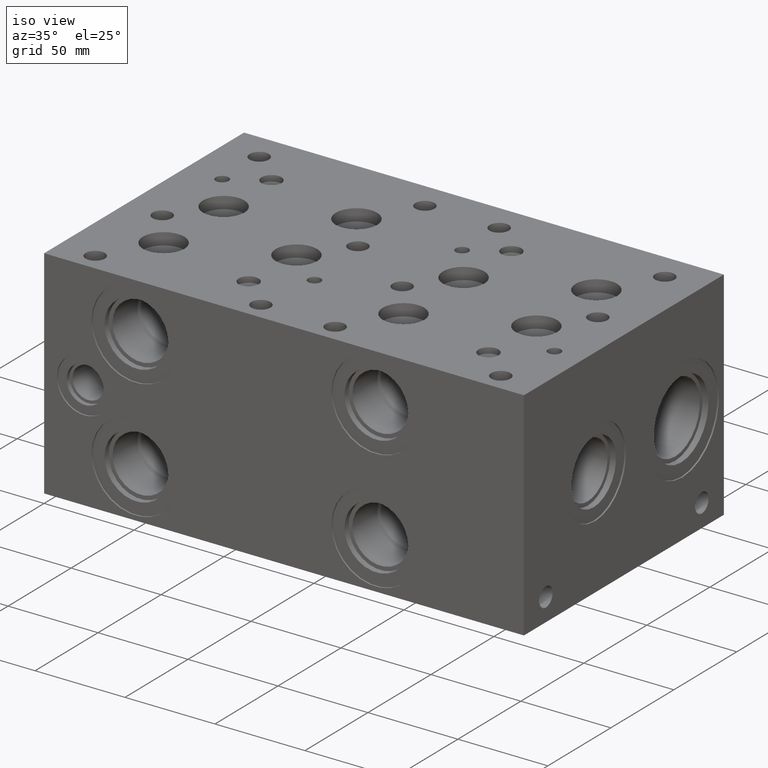
[diagram: clean part render]
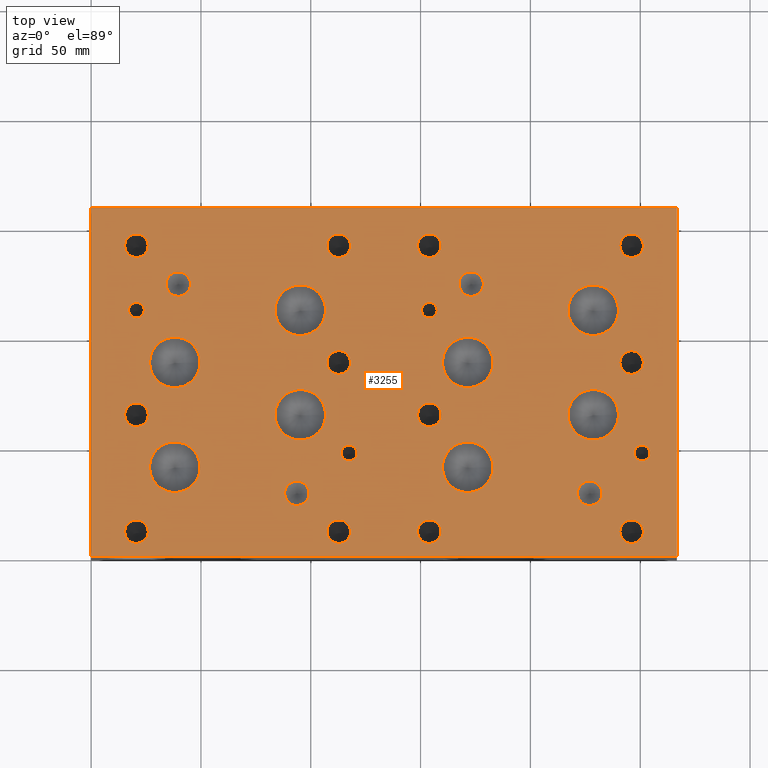
[diagram: tour spotlight — one face highlighted and labeled with its STEP entity id]
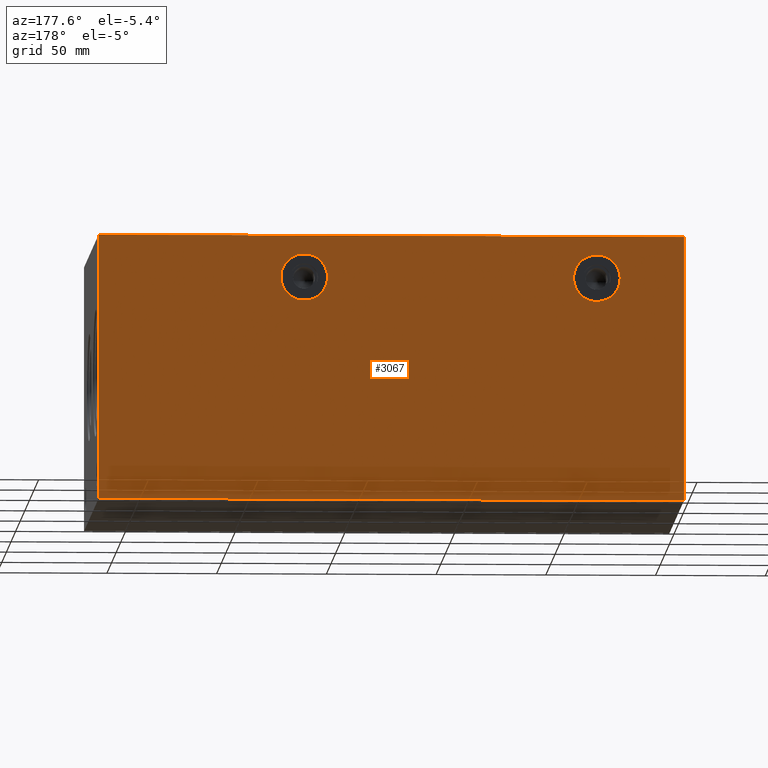
[diagram: tour spotlight — one face highlighted and labeled with its STEP entity id]
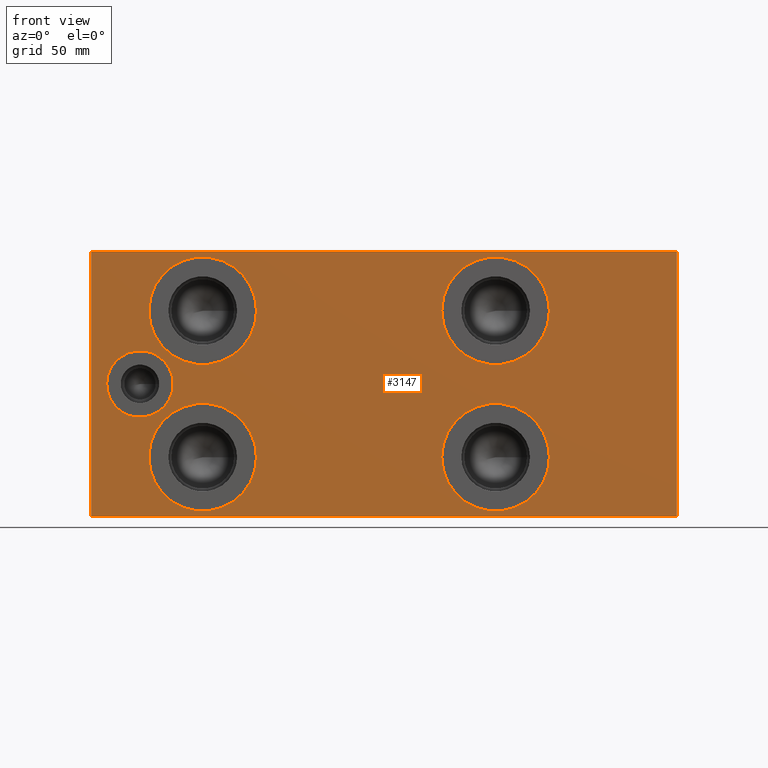
[diagram: tour spotlight — one face highlighted and labeled with its STEP entity id]
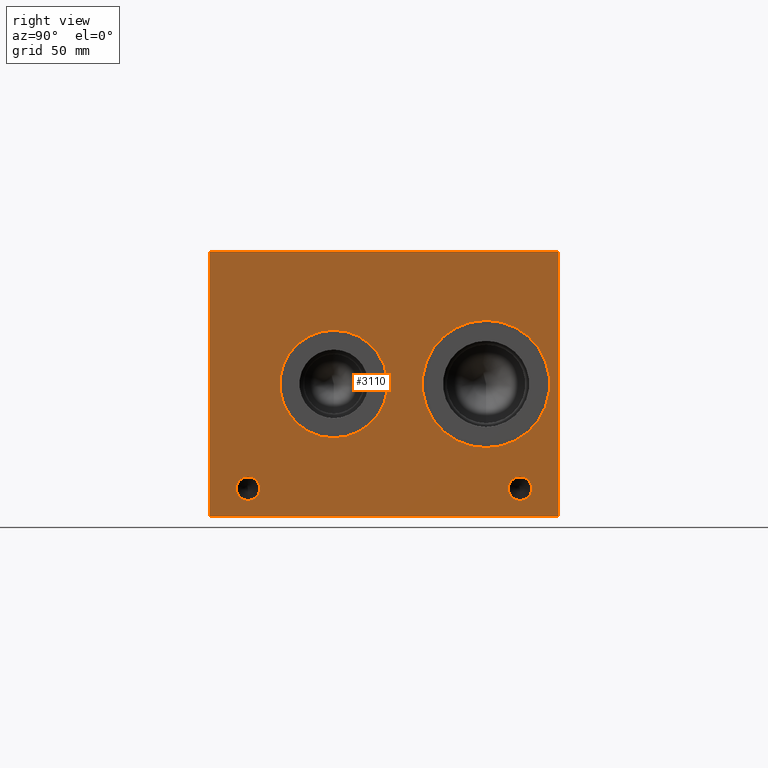
[diagram: tour spotlight — one face highlighted and labeled with its STEP entity id]
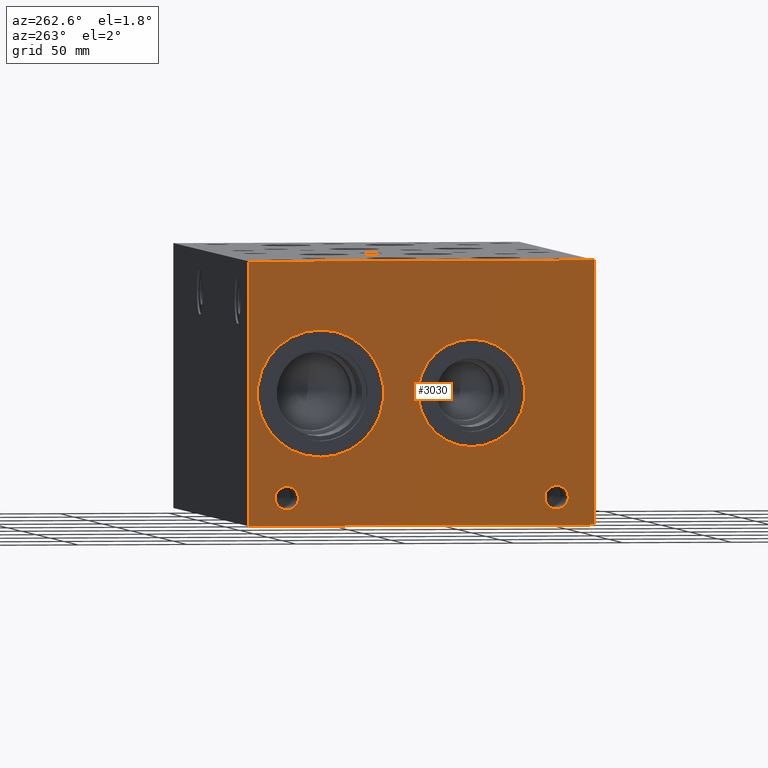
[diagram: tour spotlight — one face highlighted and labeled with its STEP entity id]
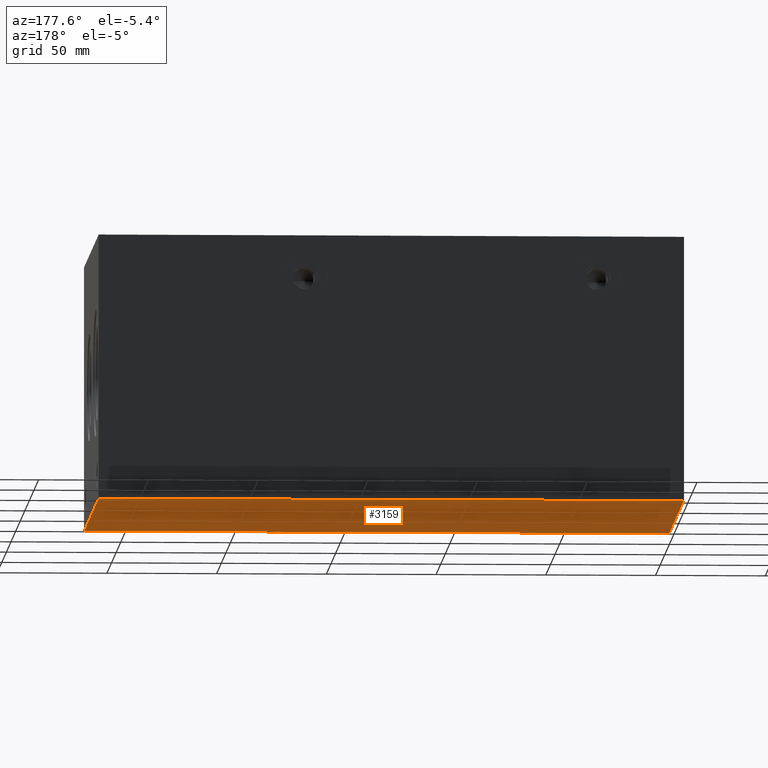
[diagram: tour spotlight — one face highlighted and labeled with its STEP entity id]
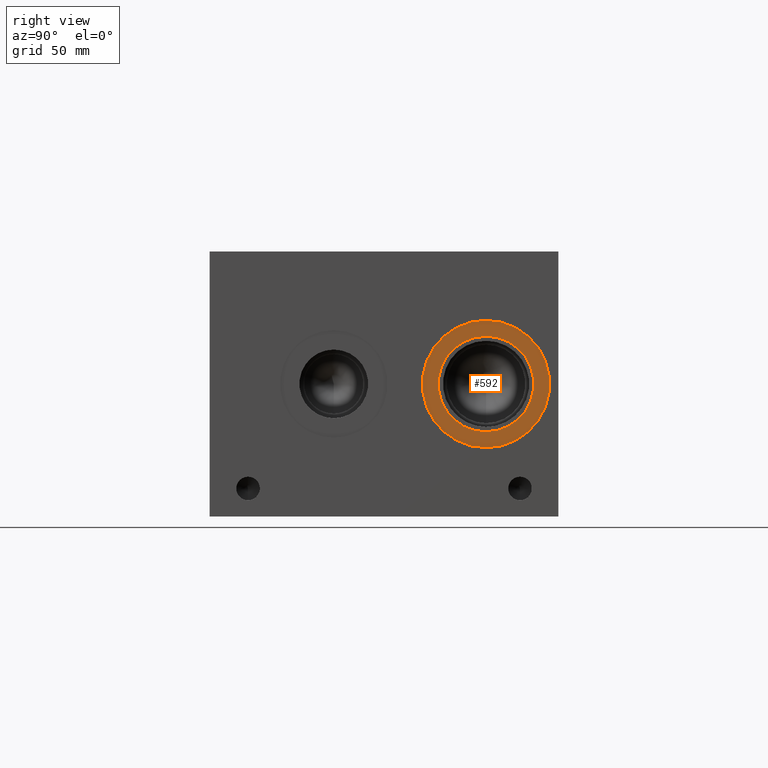
[diagram: tour spotlight — one face highlighted and labeled with its STEP entity id]
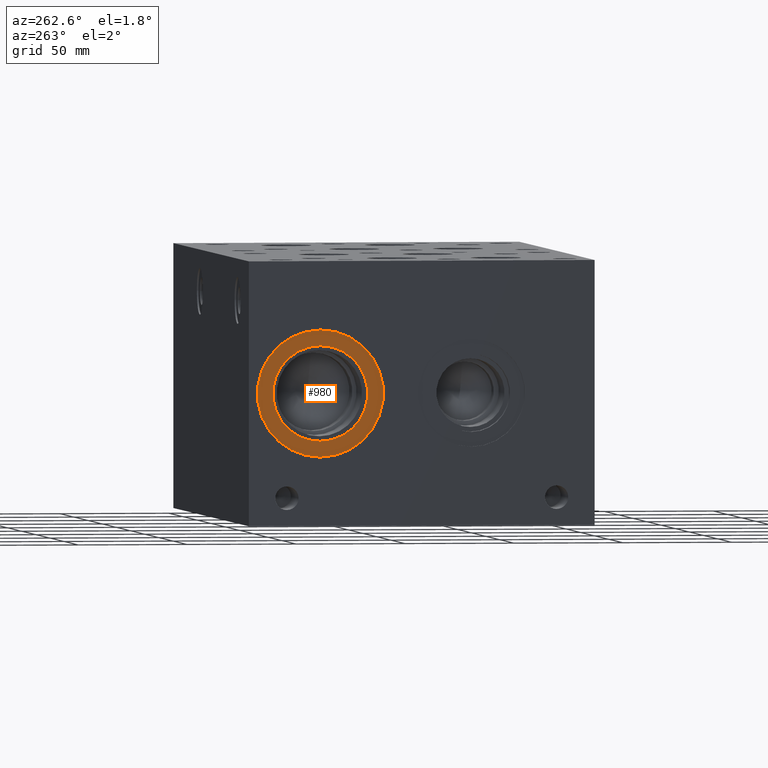
[diagram: tour spotlight — one face highlighted and labeled with its STEP entity id]
A machine part: a face-by-face anatomy tour. The part has 158 B-rep faces; the first image is the clean iso view, then the 8 largest visible faces are spotlighted one at a time (largest first), each with its STEP entity span.

Face 1 — top view, entity #3255. In plain terms, the highlighted planar face has unit normal (0, 0, 1).
Definition (entity closure, byte-faithful):
#404=CARTESIAN_POINT('',(178.58739999999997,123.85040000000001,120.65000000000001));
#405=VERTEX_POINT('',#404);
#406=CARTESIAN_POINT('',(173.0248,123.85040000000001,120.65000000000001));
#407=DIRECTION('',(0.0,0.0,-1.0));
#408=DIRECTION('',(1.0,0.0,0.0));
#409=AXIS2_PLACEMENT_3D('',#406,#407,#408);
#410=CIRCLE('',#409,5.562599999999982);
#411=EDGE_CURVE('',#405,#405,#410,.T.);
#441=CARTESIAN_POINT('',(45.237400000000001,123.85040000000001,120.65000000000001));
#442=VERTEX_POINT('',#441);
#443=CARTESIAN_POINT('',(39.674800000000005,123.85040000000001,120.65000000000001));
#444=DIRECTION('',(0.0,0.0,-1.0));
#445=DIRECTION('',(1.0,0.0,0.0));
#446=AXIS2_PLACEMENT_3D('',#443,#444,#445);
#447=CIRCLE('',#446,5.5626);
#448=EDGE_CURVE('',#442,#442,#447,.T.);
#2039=CARTESIAN_POINT('',(232.57510000000002,28.5623,120.65000000000001));
#2040=VERTEX_POINT('',#2039);
#2041=CARTESIAN_POINT('',(227.01250000000002,28.5623,120.65000000000001));
#2042=DIRECTION('',(0.0,0.0,-1.0));
#2043=DIRECTION('',(1.0,0.0,0.0));
#2044=AXIS2_PLACEMENT_3D('',#2041,#2042,#2043);
#2045=CIRCLE('',#2044,5.562600000000018);
#2046=EDGE_CURVE('',#2040,#2040,#2045,.T.);
#2076=CARTESIAN_POINT('',(182.96890000000002,40.4495,120.65000000000001));
#2077=VERTEX_POINT('',#2076);
#2078=CARTESIAN_POINT('',(171.46270000000001,40.4495,120.65000000000001));
#2079=DIRECTION('',(0.0,0.0,-1.0));
#2080=DIRECTION('',(1.0,0.0,0.0));
#2081=AXIS2_PLACEMENT_3D('',#2078,#2079,#2080);
#2082=CIRCLE('',#2081,11.5062);
#2083=EDGE_CURVE('',#2077,#2077,#2082,.T.);
#2113=CARTESIAN_POINT('',(182.96890000000002,88.12530000000001,120.65000000000001));
#2114=VERTEX_POINT('',#2113);
#2115=CARTESIAN_POINT('',(171.46270000000001,88.12530000000001,120.65000000000001));
#2116=DIRECTION('',(0.0,0.0,-1.0));
#2117=DIRECTION('',(1.0,0.0,0.0));
#2118=AXIS2_PLACEMENT_3D('',#2115,#2116,#2117);
#2119=CIRCLE('',#2118,11.5062);
#2120=EDGE_CURVE('',#2114,#2114,#2119,.T.);
#2150=CARTESIAN_POINT('',(240.1189,111.89970000000001,120.65000000000001));
#2151=VERTEX_POINT('',#2150);
#2152=CARTESIAN_POINT('',(228.61270000000002,111.89970000000001,120.65000000000001));
#2153=DIRECTION('',(0.0,0.0,-1.0));
#2154=DIRECTION('',(1.0,0.0,0.0));
#2155=AXIS2_PLACEMENT_3D('',#2152,#2153,#2154);
#2156=CIRCLE('',#2155,11.5062);
#2157=EDGE_CURVE('',#2151,#2151,#2156,.T.);
#2187=CARTESIAN_POINT('',(240.1189,64.3001,120.65000000000001));
#2188=VERTEX_POINT('',#2187);
#2189=CARTESIAN_POINT('',(228.61270000000002,64.3001,120.65000000000001));
#2190=DIRECTION('',(0.0,0.0,-1.0));
#2191=DIRECTION('',(1.0,0.0,0.0));
#2192=AXIS2_PLACEMENT_3D('',#2189,#2190,#2191);
#2193=CIRCLE('',#2192,11.5062);
#2194=EDGE_CURVE('',#2188,#2188,#2193,.T.);
#2224=CARTESIAN_POINT('',(254.40640000000002,46.850300000000004,120.65000000000001));
#2225=VERTEX_POINT('',#2224);
#2226=CARTESIAN_POINT('',(250.83770000000001,46.850300000000004,120.65000000000001));
#2227=DIRECTION('',(0.0,0.0,-1.0));
#2228=DIRECTION('',(1.0,0.0,0.0));
#2229=AXIS2_PLACEMENT_3D('',#2226,#2227,#2228);
#2230=CIRCLE('',#2229,3.568700000000007);
#2231=EDGE_CURVE('',#2225,#2225,#2230,.T.);
#2261=CARTESIAN_POINT('',(157.55620000000002,111.89970000000001,120.65000000000001));
#2262=VERTEX_POINT('',#2261);
#2263=CARTESIAN_POINT('',(153.98750000000001,111.89970000000001,120.65000000000001));
#2264=DIRECTION('',(0.0,0.0,-1.0));
#2265=DIRECTION('',(1.0,0.0,0.0));
#2266=AXIS2_PLACEMENT_3D('',#2263,#2264,#2265);
#2267=CIRCLE('',#2266,3.568700000000007);
#2268=EDGE_CURVE('',#2262,#2262,#2267,.T.);
#2298=CARTESIAN_POINT('',(159.37230000000002,64.3001,120.65000000000001));
#2299=VERTEX_POINT('',#2298);
#2300=CARTESIAN_POINT('',(154.0129,64.3001,120.65000000000001));
#2301=DIRECTION('',(0.0,0.0,-1.0));
#2302=DIRECTION('',(1.0,0.0,0.0));
#2303=AXIS2_PLACEMENT_3D('',#2300,#2301,#2302);
#2304=CIRCLE('',#2303,5.359400000000001);
#2305=EDGE_CURVE('',#2299,#2299,#2304,.T.);
#2335=CARTESIAN_POINT('',(159.34690000000001,11.112500000000001,120.65000000000001));
#2336=VERTEX_POINT('',#2335);
#2337=CARTESIAN_POINT('',(153.98750000000001,11.112500000000001,120.65000000000001));
#2338=DIRECTION('',(0.0,0.0,-1.0));
#2339=DIRECTION('',(1.0,0.0,0.0));
#2340=AXIS2_PLACEMENT_3D('',#2337,#2338,#2339);
#2341=CIRCLE('',#2340,5.359400000000001);
#2342=EDGE_CURVE('',#2336,#2336,#2341,.T.);
#2372=CARTESIAN_POINT('',(251.42190000000002,11.112500000000001,120.65000000000001));
#2373=VERTEX_POINT('',#2372);
#2374=CARTESIAN_POINT('',(246.06250000000003,11.112500000000001,120.65000000000001));
#2375=DIRECTION('',(0.0,0.0,-1.0));
#2376=DIRECTION('',(1.0,0.0,0.0));
#2377=AXIS2_PLACEMENT_3D('',#2374,#2375,#2376);
#2378=CIRCLE('',#2377,5.359400000000001);
#2379=EDGE_CURVE('',#2373,#2373,#2378,.T.);
#2409=CARTESIAN_POINT('',(251.42190000000002,88.099900000000005,120.65000000000001));
#2410=VERTEX_POINT('',#2409);
#2411=CARTESIAN_POINT('',(246.06250000000003,88.099900000000005,120.65000000000001));
#2412=DIRECTION('',(0.0,0.0,-1.0));
#2413=DIRECTION('',(1.0,0.0,0.0));
#2414=AXIS2_PLACEMENT_3D('',#2411,#2412,#2413);
#2415=CIRCLE('',#2414,5.359400000000001);
#2416=EDGE_CURVE('',#2410,#2410,#2415,.T.);
#2446=CARTESIAN_POINT('',(251.42190000000002,141.28749999999999,120.65000000000001));
#2447=VERTEX_POINT('',#2446);
#2448=CARTESIAN_POINT('',(246.06250000000003,141.28749999999999,120.65000000000001));
#2449=DIRECTION('',(0.0,0.0,-1.0));
#2450=DIRECTION('',(1.0,0.0,0.0));
#2451=AXIS2_PLACEMENT_3D('',#2448,#2449,#2450);
#2452=CIRCLE('',#2451,5.359400000000001);
#2453=EDGE_CURVE('',#2447,#2447,#2452,.T.);
#2483=CARTESIAN_POINT('',(159.34690000000001,141.28749999999999,120.65000000000001));
#2484=VERTEX_POINT('',#2483);
#2485=CARTESIAN_POINT('',(153.98750000000001,141.28749999999999,120.65000000000001));
#2486=DIRECTION('',(0.0,0.0,-1.0));
#2487=DIRECTION('',(1.0,0.0,0.0));
#2488=AXIS2_PLACEMENT_3D('',#2485,#2486,#2487);
#2489=CIRCLE('',#2488,5.359400000000001);
#2490=EDGE_CURVE('',#2484,#2484,#2489,.T.);
#2520=CARTESIAN_POINT('',(99.231450000000024,28.582619999999999,120.65000000000001));
#2521=VERTEX_POINT('',#2520);
#2522=CARTESIAN_POINT('',(93.675200000000004,28.582619999999999,120.65000000000001));
#2523=DIRECTION('',(0.0,0.0,-1.0));
#2524=DIRECTION('',(1.0,0.0,0.0));
#2525=AXIS2_PLACEMENT_3D('',#2522,#2523,#2524);
#2526=CIRCLE('',#2525,5.556250000000009);
#2527=EDGE_CURVE('',#2521,#2521,#2526,.T.);
#2557=CARTESIAN_POINT('',(49.618900000000004,40.474899999999998,120.65000000000001));
#2558=VERTEX_POINT('',#2557);
#2559=CARTESIAN_POINT('',(38.112699999999997,40.474899999999998,120.65000000000001));
#2560=DIRECTION('',(0.0,0.0,-1.0));
#2561=DIRECTION('',(1.0,0.0,0.0));
#2562=AXIS2_PLACEMENT_3D('',#2559,#2560,#2561);
#2563=CIRCLE('',#2562,11.506200000000003);
#2564=EDGE_CURVE('',#2558,#2558,#2563,.T.);
#2594=CARTESIAN_POINT('',(49.618900000000004,88.12530000000001,120.65000000000001));
#2595=VERTEX_POINT('',#2594);
#2596=CARTESIAN_POINT('',(38.112699999999997,88.12530000000001,120.65000000000001));
#2597=DIRECTION('',(0.0,0.0,-1.0));
#2598=DIRECTION('',(1.0,0.0,0.0));
#2599=AXIS2_PLACEMENT_3D('',#2596,#2597,#2598);
#2600=CIRCLE('',#2599,11.506200000000003);
#2601=EDGE_CURVE('',#2595,#2595,#2600,.T.);
#2631=CARTESIAN_POINT('',(106.77144,111.9251,120.65000000000001));
#2632=VERTEX_POINT('',#2631);
#2633=CARTESIAN_POINT('',(95.262699999999995,111.9251,120.65000000000001));
#2634=DIRECTION('',(0.0,0.0,-1.0));
#2635=DIRECTION('',(1.0,0.0,0.0));
#2636=AXIS2_PLACEMENT_3D('',#2633,#2634,#2635);
#2637=CIRCLE('',#2636,11.50874);
#2638=EDGE_CURVE('',#2632,#2632,#2637,.T.);
#2668=CARTESIAN_POINT('',(106.77144,64.3001,120.65000000000001));
#2669=VERTEX_POINT('',#2668);
#2670=CARTESIAN_POINT('',(95.262699999999995,64.3001,120.65000000000001));
#2671=DIRECTION('',(0.0,0.0,-1.0));
#2672=DIRECTION('',(1.0,0.0,0.0));
#2673=AXIS2_PLACEMENT_3D('',#2670,#2671,#2672);
#2674=CIRCLE('',#2673,11.50874);
#2675=EDGE_CURVE('',#2669,#2669,#2674,.T.);
#2705=CARTESIAN_POINT('',(121.05640000000001,46.850300000000004,120.65000000000001));
#2706=VERTEX_POINT('',#2705);
#2707=CARTESIAN_POINT('',(117.4877,46.850300000000004,120.65000000000001));
#2708=DIRECTION('',(0.0,0.0,-1.0));
#2709=DIRECTION('',(1.0,0.0,0.0));
#2710=AXIS2_PLACEMENT_3D('',#2707,#2708,#2709);
#2711=CIRCLE('',#2710,3.568700000000007);
#2712=EDGE_CURVE('',#2706,#2706,#2711,.T.);
#2742=CARTESIAN_POINT('',(24.206200000000003,111.9251,120.65000000000001));
#2743=VERTEX_POINT('',#2742);
#2744=CARTESIAN_POINT('',(20.637500000000003,111.9251,120.65000000000001));
#2745=DIRECTION('',(0.0,0.0,-1.0));
#2746=DIRECTION('',(1.0,0.0,0.0));
#2747=AXIS2_PLACEMENT_3D('',#2744,#2745,#2746);
#2748=CIRCLE('',#2747,3.568700000000002);
#2749=EDGE_CURVE('',#2743,#2743,#2748,.T.);
#2779=CARTESIAN_POINT('',(26.022300000000001,64.3001,120.65000000000001));
#2780=VERTEX_POINT('',#2779);
#2781=CARTESIAN_POINT('',(20.6629,64.3001,120.65000000000001));
#2782=DIRECTION('',(0.0,0.0,-1.0));
#2783=DIRECTION('',(1.0,0.0,0.0));
#2784=AXIS2_PLACEMENT_3D('',#2781,#2782,#2783);
#2785=CIRCLE('',#2784,5.359400000000001);
#2786=EDGE_CURVE('',#2780,#2780,#2785,.T.);
#2816=CARTESIAN_POINT('',(26.009600000000002,11.12012,120.65000000000001));
#2817=VERTEX_POINT('',#2816);
#2818=CARTESIAN_POINT('',(20.650200000000002,11.12012,120.65000000000001));
#2819=DIRECTION('',(0.0,0.0,-1.0));
#2820=DIRECTION('',(1.0,0.0,0.0));
#2821=AXIS2_PLACEMENT_3D('',#2818,#2819,#2820);
#2822=CIRCLE('',#2821,5.359400000000001);
#2823=EDGE_CURVE('',#2817,#2817,#2822,.T.);
#2853=CARTESIAN_POINT('',(118.08459999999999,11.12012,120.65000000000001));
#2854=VERTEX_POINT('',#2853);
#2855=CARTESIAN_POINT('',(112.7252,11.12012,120.65000000000001));
#2856=DIRECTION('',(0.0,0.0,-1.0));
#2857=DIRECTION('',(1.0,0.0,0.0));
#2858=AXIS2_PLACEMENT_3D('',#2855,#2856,#2857);
#2859=CIRCLE('',#2858,5.359400000000001);
#2860=EDGE_CURVE('',#2854,#2854,#2859,.T.);
#2890=CARTESIAN_POINT('',(118.0973,88.112600000000015,120.65000000000001));
#2891=VERTEX_POINT('',#2890);
#2892=CARTESIAN_POINT('',(112.7379,88.112600000000015,120.65000000000001));
#2893=DIRECTION('',(0.0,0.0,-1.0));
#2894=DIRECTION('',(1.0,0.0,0.0));
#2895=AXIS2_PLACEMENT_3D('',#2892,#2893,#2894);
#2896=CIRCLE('',#2895,5.359400000000001);
#2897=EDGE_CURVE('',#2891,#2891,#2896,.T.);
#2927=CARTESIAN_POINT('',(118.08459999999999,141.29257999999999,120.65000000000001));
#2928=VERTEX_POINT('',#2927);
#2929=CARTESIAN_POINT('',(112.7252,141.29257999999999,120.65000000000001));
#2930=DIRECTION('',(0.0,0.0,-1.0));
#2931=DIRECTION('',(1.0,0.0,0.0));
#2932=AXIS2_PLACEMENT_3D('',#2929,#2930,#2931);
#2933=CIRCLE('',#2932,5.359400000000001);
#2934=EDGE_CURVE('',#2928,#2928,#2933,.T.);
#2964=CARTESIAN_POINT('',(25.996900000000004,141.28749999999999,120.65000000000001));
#2965=VERTEX_POINT('',#2964);
#2966=CARTESIAN_POINT('',(20.637500000000003,141.28749999999999,120.65000000000001));
#2967=DIRECTION('',(0.0,0.0,-1.0));
#2968=DIRECTION('',(1.0,0.0,0.0));
#2969=AXIS2_PLACEMENT_3D('',#2966,#2967,#2968);
#2970=CIRCLE('',#2969,5.359400000000001);
#2971=EDGE_CURVE('',#2965,#2965,#2970,.T.);
#2984=CARTESIAN_POINT('',(0.0,0.0,120.65000000000001));
#2985=VERTEX_POINT('',#2984);
#2986=CARTESIAN_POINT('',(0.0,158.75,120.65000000000001));
#2987=VERTEX_POINT('',#2986);
#2988=CARTESIAN_POINT('',(0.0,0.0,120.65000000000001));
#2989=DIRECTION('',(0.0,1.0,0.0));
#2990=VECTOR('',#2989,158.75);
#2991=LINE('',#2988,#2990);
#2992=EDGE_CURVE('',#2985,#2987,#2991,.T.);
#3036=CARTESIAN_POINT('',(266.70000000000005,158.75,120.65000000000001));
#3037=VERTEX_POINT('',#3036);
#3038=CARTESIAN_POINT('',(0.0,158.75,120.65000000000001));
#3039=DIRECTION('',(1.0,0.0,0.0));
#3040=VECTOR('',#3039,266.70000000000005);
#3041=LINE('',#3038,#3040);
#3042=EDGE_CURVE('',#2987,#3037,#3041,.T.);
#3073=CARTESIAN_POINT('',(266.70000000000005,0.0,120.65000000000001));
#3074=VERTEX_POINT('',#3073);
#3075=CARTESIAN_POINT('',(266.70000000000005,158.75,120.65000000000001));
#3076=DIRECTION('',(0.0,-1.0,0.0));
#3077=VECTOR('',#3076,158.75);
#3078=LINE('',#3075,#3077);
#3079=EDGE_CURVE('',#3037,#3074,#3078,.T.);
#3116=CARTESIAN_POINT('',(266.70000000000005,0.0,120.65000000000001));
#3117=DIRECTION('',(-1.0,0.0,0.0));
#3118=VECTOR('',#3117,266.70000000000005);
#3119=LINE('',#3116,#3118);
#3120=EDGE_CURVE('',#3074,#2985,#3119,.T.);
#3160=CARTESIAN_POINT('',(133.35000000000005,79.374999999999986,120.65000000000001));
#3161=DIRECTION('',(0.0,0.0,1.0));
#3162=DIRECTION('',(1.0,0.0,0.0));
#3163=AXIS2_PLACEMENT_3D('',#3160,#3161,#3162);
#3164=PLANE('',#3163);
#3165=ORIENTED_EDGE('',*,*,#2992,.F.);
#3166=ORIENTED_EDGE('',*,*,#3120,.F.);
#3167=ORIENTED_EDGE('',*,*,#3079,.F.);
#3168=ORIENTED_EDGE('',*,*,#3042,.F.);
#3169=EDGE_LOOP('',(#3165,#3166,#3167,#3168));
#3170=FACE_OUTER_BOUND('',#3169,.T.);
#3171=ORIENTED_EDGE('',*,*,#411,.T.);
#3172=EDGE_LOOP('',(#3171));
#3173=FACE_BOUND('',#3172,.T.);
#3174=ORIENTED_EDGE('',*,*,#448,.T.);
#3175=EDGE_LOOP('',(#3174));
#3176=FACE_BOUND('',#3175,.T.);
#3177=ORIENTED_EDGE('',*,*,#2046,.T.);
#3178=EDGE_LOOP('',(#3177));
#3179=FACE_BOUND('',#3178,.T.);
#3180=ORIENTED_EDGE('',*,*,#2083,.T.);
#3181=EDGE_LOOP('',(#3180));
#3182=FACE_BOUND('',#3181,.T.);
#3183=ORIENTED_EDGE('',*,*,#2120,.T.);
#3184=EDGE_LOOP('',(#3183));
#3185=FACE_BOUND('',#3184,.T.);
#3186=ORIENTED_EDGE('',*,*,#2157,.T.);
#3187=EDGE_LOOP('',(#3186));
#3188=FACE_BOUND('',#3187,.T.);
#3189=ORIENTED_EDGE('',*,*,#2194,.T.);
#3190=EDGE_LOOP('',(#3189));
#3191=FACE_BOUND('',#3190,.T.);
#3192=ORIENTED_EDGE('',*,*,#2231,.T.);
#3193=EDGE_LOOP('',(#3192));
#3194=FACE_BOUND('',#3193,.T.);
#3195=ORIENTED_EDGE('',*,*,#2268,.T.);
#3196=EDGE_LOOP('',(#3195));
#3197=FACE_BOUND('',#3196,.T.);
#3198=ORIENTED_EDGE('',*,*,#2305,.T.);
#3199=EDGE_LOOP('',(#3198));
#3200=FACE_BOUND('',#3199,.T.);
#3201=ORIENTED_EDGE('',*,*,#2342,.T.);
#3202=EDGE_LOOP('',(#3201));
#3203=FACE_BOUND('',#3202,.T.);
#3204=ORIENTED_EDGE('',*,*,#2379,.T.);
#3205=EDGE_LOOP('',(#3204));
#3206=FACE_BOUND('',#3205,.T.);
#3207=ORIENTED_EDGE('',*,*,#2416,.T.);
#3208=EDGE_LOOP('',(#3207));
#3209=FACE_BOUND('',#3208,.T.);
#3210=ORIENTED_EDGE('',*,*,#2453,.T.);
#3211=EDGE_LOOP('',(#3210));
#3212=FACE_BOUND('',#3211,.T.);
#3213=ORIENTED_EDGE('',*,*,#2490,.T.);
#3214=EDGE_LOOP('',(#3213));
#3215=FACE_BOUND('',#3214,.T.);
#3216=ORIENTED_EDGE('',*,*,#2527,.T.);
#3217=EDGE_LOOP('',(#3216));
#3218=FACE_BOUND('',#3217,.T.);
#3219=ORIENTED_EDGE('',*,*,#2564,.T.);
#3220=EDGE_LOOP('',(#3219));
#3221=FACE_BOUND('',#3220,.T.);
#3222=ORIENTED_EDGE('',*,*,#2601,.T.);
#3223=EDGE_LOOP('',(#3222));
#3224=FACE_BOUND('',#3223,.T.);
#3225=ORIENTED_EDGE('',*,*,#2638,.T.);
#3226=EDGE_LOOP('',(#3225));
#3227=FACE_BOUND('',#3226,.T.);
#3228=ORIENTED_EDGE('',*,*,#2675,.T.);
#3229=EDGE_LOOP('',(#3228));
#3230=FACE_BOUND('',#3229,.T.);
#3231=ORIENTED_EDGE('',*,*,#2712,.T.);
#3232=EDGE_LOOP('',(#3231));
#3233=FACE_BOUND('',#3232,.T.);
#3234=ORIENTED_EDGE('',*,*,#2749,.T.);
#3235=EDGE_LOOP('',(#3234));
#3236=FACE_BOUND('',#3235,.T.);
#3237=ORIENTED_EDGE('',*,*,#2786,.T.);
#3238=EDGE_LOOP('',(#3237));
#3239=FACE_BOUND('',#3238,.T.);
#3240=ORIENTED_EDGE('',*,*,#2823,.T.);
#3241=EDGE_LOOP('',(#3240));
#3242=FACE_BOUND('',#3241,.T.);
#3243=ORIENTED_EDGE('',*,*,#2860,.T.);
#3244=EDGE_LOOP('',(#3243));
#3245=FACE_BOUND('',#3244,.T.);
#3246=ORIENTED_EDGE('',*,*,#2897,.T.);
#3247=EDGE_LOOP('',(#3246));
#3248=FACE_BOUND('',#3247,.T.);
#3249=ORIENTED_EDGE('',*,*,#2934,.T.);
#3250=EDGE_LOOP('',(#3249));
#3251=FACE_BOUND('',#3250,.T.);
#3252=ORIENTED_EDGE('',*,*,#2971,.T.);
#3253=EDGE_LOOP('',(#3252));
#3254=FACE_BOUND('',#3253,.T.);
#3255=ADVANCED_FACE('',(#3170,#3173,#3176,#3179,#3182,#3185,#3188,#3191,#3194,#3197,#3200,#3203,#3206,#3209,#3212,#3215,#3218,#3221,#3224,#3227,#3230,#3233,#3236,#3239,#3242,#3245,#3248,#3251,#3254),#3164,.T.);

Face 2 — auxiliary view, entity #3067. In plain terms, the highlighted planar face has unit normal (0, 1, 0).
Definition (entity closure, byte-faithful):
#210=CARTESIAN_POINT('',(183.66739999999999,158.75,101.59999999999999));
#211=VERTEX_POINT('',#210);
#212=CARTESIAN_POINT('',(173.0248,158.75,101.59999999999999));
#213=DIRECTION('',(0.0,-1.0,0.0));
#214=DIRECTION('',(1.0,0.0,0.0));
#215=AXIS2_PLACEMENT_3D('',#212,#213,#214);
#216=CIRCLE('',#215,10.642600000000009);
#217=EDGE_CURVE('',#211,#211,#216,.T.);
#367=CARTESIAN_POINT('',(50.317399999999999,158.75,101.59999999999999));
#368=VERTEX_POINT('',#367);
#369=CARTESIAN_POINT('',(39.674800000000005,158.75,101.59999999999999));
#370=DIRECTION('',(0.0,-1.0,0.0));
#371=DIRECTION('',(1.0,0.0,0.0));
#372=AXIS2_PLACEMENT_3D('',#369,#370,#371);
#373=CIRCLE('',#372,10.6426);
#374=EDGE_CURVE('',#368,#368,#373,.T.);
#2986=CARTESIAN_POINT('',(0.0,158.75,120.65000000000001));
#2987=VERTEX_POINT('',#2986);
#2994=CARTESIAN_POINT('',(0.0,158.75,0.0));
#2995=VERTEX_POINT('',#2994);
#2996=CARTESIAN_POINT('',(0.0,158.75,0.0));
#2997=DIRECTION('',(0.0,0.0,1.0));
#2998=VECTOR('',#2997,120.65000000000001);
#2999=LINE('',#2996,#2998);
#3000=EDGE_CURVE('',#2995,#2987,#2999,.T.);
#3031=CARTESIAN_POINT('',(0.0,158.75,0.0));
#3032=DIRECTION('',(0.0,1.0,0.0));
#3033=DIRECTION('',(0.0,0.0,1.0));
#3034=AXIS2_PLACEMENT_3D('',#3031,#3032,#3033);
#3035=PLANE('',#3034);
#3036=CARTESIAN_POINT('',(266.70000000000005,158.75,120.65000000000001));
#3037=VERTEX_POINT('',#3036);
#3038=CARTESIAN_POINT('',(0.0,158.75,120.65000000000001));
#3039=DIRECTION('',(1.0,0.0,0.0));
#3040=VECTOR('',#3039,266.70000000000005);
#3041=LINE('',#3038,#3040);
#3042=EDGE_CURVE('',#2987,#3037,#3041,.T.);
#3043=ORIENTED_EDGE('',*,*,#3042,.T.);
#3044=CARTESIAN_POINT('',(266.70000000000005,158.75,0.0));
#3045=VERTEX_POINT('',#3044);
#3046=CARTESIAN_POINT('',(266.70000000000005,158.75,0.0));
#3047=DIRECTION('',(0.0,0.0,1.0));
#3048=VECTOR('',#3047,120.65000000000001);
#3049=LINE('',#3046,#3048);
#3050=EDGE_CURVE('',#3045,#3037,#3049,.T.);
#3051=ORIENTED_EDGE('',*,*,#3050,.F.);
#3052=CARTESIAN_POINT('',(266.70000000000005,158.75,0.0));
#3053=DIRECTION('',(-1.0,0.0,0.0));
#3054=VECTOR('',#3053,266.70000000000005);
#3055=LINE('',#3052,#3054);
#3056=EDGE_CURVE('',#3045,#2995,#3055,.T.);
#3057=ORIENTED_EDGE('',*,*,#3056,.T.);
#3058=ORIENTED_EDGE('',*,*,#3000,.T.);
#3059=EDGE_LOOP('',(#3043,#3051,#3057,#3058));
#3060=FACE_OUTER_BOUND('',#3059,.T.);
#3061=ORIENTED_EDGE('',*,*,#217,.T.);
#3062=EDGE_LOOP('',(#3061));
#3063=FACE_BOUND('',#3062,.T.);
#3064=ORIENTED_EDGE('',*,*,#374,.T.);
#3065=EDGE_LOOP('',(#3064));
#3066=FACE_BOUND('',#3065,.T.);
#3067=ADVANCED_FACE('',(#3060,#3063,#3066),#3035,.T.);

Face 3 — front view, entity #3147. In plain terms, the highlighted planar face has unit normal (0, -1, 0).
Definition (entity closure, byte-faithful):
#1374=CARTESIAN_POINT('',(208.63560000000004,0.0,26.987500000000004));
#1375=VERTEX_POINT('',#1374);
#1376=CARTESIAN_POINT('',(184.15000000000003,0.0,26.987500000000004));
#1377=DIRECTION('',(0.0,1.0,0.0));
#1378=DIRECTION('',(1.0,0.0,0.0));
#1379=AXIS2_PLACEMENT_3D('',#1376,#1377,#1378);
#1380=CIRCLE('',#1379,24.485600000000005);
#1381=EDGE_CURVE('',#1375,#1375,#1380,.T.);
#1531=CARTESIAN_POINT('',(75.285600000000002,0.0,26.987500000000004));
#1532=VERTEX_POINT('',#1531);
#1533=CARTESIAN_POINT('',(50.799999999999997,0.0,26.987500000000004));
#1534=DIRECTION('',(0.0,1.0,0.0));
#1535=DIRECTION('',(1.0,0.0,0.0));
#1536=AXIS2_PLACEMENT_3D('',#1533,#1534,#1535);
#1537=CIRCLE('',#1536,24.485600000000005);
#1538=EDGE_CURVE('',#1532,#1532,#1537,.T.);
#1688=CARTESIAN_POINT('',(208.63560000000004,0.0,93.662499999999994));
#1689=VERTEX_POINT('',#1688);
#1690=CARTESIAN_POINT('',(184.15000000000003,0.0,93.662499999999994));
#1691=DIRECTION('',(0.0,1.0,0.0));
#1692=DIRECTION('',(1.0,0.0,0.0));
#1693=AXIS2_PLACEMENT_3D('',#1690,#1691,#1692);
#1694=CIRCLE('',#1693,24.485600000000005);
#1695=EDGE_CURVE('',#1689,#1689,#1694,.T.);
#1845=CARTESIAN_POINT('',(75.285600000000002,0.0,93.662499999999994));
#1846=VERTEX_POINT('',#1845);
#1847=CARTESIAN_POINT('',(50.799999999999997,0.0,93.662499999999994));
#1848=DIRECTION('',(0.0,1.0,0.0));
#1849=DIRECTION('',(1.0,0.0,0.0));
#1850=AXIS2_PLACEMENT_3D('',#1847,#1848,#1849);
#1851=CIRCLE('',#1850,24.485600000000005);
#1852=EDGE_CURVE('',#1846,#1846,#1851,.T.);
#2002=CARTESIAN_POINT('',(37.350700000000003,0.0,60.325000000000003));
#2003=VERTEX_POINT('',#2002);
#2004=CARTESIAN_POINT('',(22.225000000000001,0.0,60.325000000000003));
#2005=DIRECTION('',(0.0,1.0,0.0));
#2006=DIRECTION('',(1.0,0.0,0.0));
#2007=AXIS2_PLACEMENT_3D('',#2004,#2005,#2006);
#2008=CIRCLE('',#2007,15.125700000000002);
#2009=EDGE_CURVE('',#2003,#2003,#2008,.T.);
#2984=CARTESIAN_POINT('',(0.0,0.0,120.65000000000001));
#2985=VERTEX_POINT('',#2984);
#3002=CARTESIAN_POINT('',(0.0,0.0,0.0));
#3003=VERTEX_POINT('',#3002);
#3010=CARTESIAN_POINT('',(0.0,0.0,0.0));
#3011=DIRECTION('',(0.0,0.0,1.0));
#3012=VECTOR('',#3011,120.65000000000001);
#3013=LINE('',#3010,#3012);
#3014=EDGE_CURVE('',#3003,#2985,#3013,.T.);
#3073=CARTESIAN_POINT('',(266.70000000000005,0.0,120.65000000000001));
#3074=VERTEX_POINT('',#3073);
#3081=CARTESIAN_POINT('',(266.70000000000005,0.0,0.0));
#3082=VERTEX_POINT('',#3081);
#3083=CARTESIAN_POINT('',(266.70000000000005,0.0,0.0));
#3084=DIRECTION('',(0.0,0.0,1.0));
#3085=VECTOR('',#3084,120.65000000000001);
#3086=LINE('',#3083,#3085);
#3087=EDGE_CURVE('',#3082,#3074,#3086,.T.);
#3111=CARTESIAN_POINT('',(266.70000000000005,0.0,0.0));
#3112=DIRECTION('',(0.0,-1.0,0.0));
#3113=DIRECTION('',(0.0,0.0,-1.0));
#3114=AXIS2_PLACEMENT_3D('',#3111,#3112,#3113);
#3115=PLANE('',#3114);
#3116=CARTESIAN_POINT('',(266.70000000000005,0.0,120.65000000000001));
#3117=DIRECTION('',(-1.0,0.0,0.0));
#3118=VECTOR('',#3117,266.70000000000005);
#3119=LINE('',#3116,#3118);
#3120=EDGE_CURVE('',#3074,#2985,#3119,.T.);
#3121=ORIENTED_EDGE('',*,*,#3120,.T.);
#3122=ORIENTED_EDGE('',*,*,#3014,.F.);
#3123=CARTESIAN_POINT('',(0.0,0.0,0.0));
#3124=DIRECTION('',(1.0,0.0,0.0));
#3125=VECTOR('',#3124,266.70000000000005);
#3126=LINE('',#3123,#3125);
#3127=EDGE_CURVE('',#3003,#3082,#3126,.T.);
#3128=ORIENTED_EDGE('',*,*,#3127,.T.);
#3129=ORIENTED_EDGE('',*,*,#3087,.T.);
#3130=EDGE_LOOP('',(#3121,#3122,#3128,#3129));
#3131=FACE_OUTER_BOUND('',#3130,.T.);
#3132=ORIENTED_EDGE('',*,*,#1381,.T.);
#3133=EDGE_LOOP('',(#3132));
#3134=FACE_BOUND('',#3133,.T.);
#3135=ORIENTED_EDGE('',*,*,#1538,.T.);
#3136=EDGE_LOOP('',(#3135));
#3137=FACE_BOUND('',#3136,.T.);
#3138=ORIENTED_EDGE('',*,*,#1695,.T.);
#3139=EDGE_LOOP('',(#3138));
#3140=FACE_BOUND('',#3139,.T.);
#3141=ORIENTED_EDGE('',*,*,#1852,.T.);
#3142=EDGE_LOOP('',(#3141));
#3143=FACE_BOUND('',#3142,.T.);
#3144=ORIENTED_EDGE('',*,*,#2009,.T.);
#3145=EDGE_LOOP('',(#3144));
#3146=FACE_BOUND('',#3145,.T.);
#3147=ADVANCED_FACE('',(#3131,#3134,#3137,#3140,#3143,#3146),#3115,.T.);

Face 4 — right view, entity #3110. In plain terms, the highlighted planar face has unit normal (1, 0, 0).
Definition (entity closure, byte-faithful):
#598=CARTESIAN_POINT('',(266.70000000000005,125.83159999999999,31.343600000000006));
#599=VERTEX_POINT('',#598);
#600=CARTESIAN_POINT('',(266.70000000000005,125.83159999999999,60.325000000000003));
#601=DIRECTION('',(-1.0,0.0,0.0));
#602=DIRECTION('',(0.0,0.0,-1.0));
#603=AXIS2_PLACEMENT_3D('',#600,#601,#602);
#604=CIRCLE('',#603,28.981400000000001);
#605=EDGE_CURVE('',#599,#599,#604,.T.);
#755=CARTESIAN_POINT('',(266.70000000000005,56.48960000000001,35.839399999999998));
#756=VERTEX_POINT('',#755);
#757=CARTESIAN_POINT('',(266.70000000000005,56.48960000000001,60.325000000000003));
#758=DIRECTION('',(-1.0,0.0,0.0));
#759=DIRECTION('',(0.0,0.0,-1.0));
#760=AXIS2_PLACEMENT_3D('',#757,#758,#759);
#761=CIRCLE('',#760,24.485600000000005);
#762=EDGE_CURVE('',#756,#756,#761,.T.);
#792=CARTESIAN_POINT('',(266.70000000000005,141.28749999999999,7.3406));
#793=VERTEX_POINT('',#792);
#794=CARTESIAN_POINT('',(266.70000000000005,141.28749999999999,12.699999999999999));
#795=DIRECTION('',(-1.0,0.0,0.0));
#796=DIRECTION('',(0.0,0.0,-1.0));
#797=AXIS2_PLACEMENT_3D('',#794,#795,#796);
#798=CIRCLE('',#797,5.3594);
#799=EDGE_CURVE('',#793,#793,#798,.T.);
#829=CARTESIAN_POINT('',(266.70000000000005,17.462499999999999,7.3406));
#830=VERTEX_POINT('',#829);
#831=CARTESIAN_POINT('',(266.70000000000005,17.462499999999999,12.699999999999999));
#832=DIRECTION('',(-1.0,0.0,0.0));
#833=DIRECTION('',(0.0,0.0,-1.0));
#834=AXIS2_PLACEMENT_3D('',#831,#832,#833);
#835=CIRCLE('',#834,5.3594);
#836=EDGE_CURVE('',#830,#830,#835,.T.);
#3036=CARTESIAN_POINT('',(266.70000000000005,158.75,120.65000000000001));
#3037=VERTEX_POINT('',#3036);
#3044=CARTESIAN_POINT('',(266.70000000000005,158.75,0.0));
#3045=VERTEX_POINT('',#3044);
#3046=CARTESIAN_POINT('',(266.70000000000005,158.75,0.0));
#3047=DIRECTION('',(0.0,0.0,1.0));
#3048=VECTOR('',#3047,120.65000000000001);
#3049=LINE('',#3046,#3048);
#3050=EDGE_CURVE('',#3045,#3037,#3049,.T.);
#3068=CARTESIAN_POINT('',(266.70000000000005,158.75,0.0));
#3069=DIRECTION('',(1.0,0.0,0.0));
#3070=DIRECTION('',(0.0,0.0,-1.0));
#3071=AXIS2_PLACEMENT_3D('',#3068,#3069,#3070);
#3072=PLANE('',#3071);
#3073=CARTESIAN_POINT('',(266.70000000000005,0.0,120.65000000000001));
#3074=VERTEX_POINT('',#3073);
#3075=CARTESIAN_POINT('',(266.70000000000005,158.75,120.65000000000001));
#3076=DIRECTION('',(0.0,-1.0,0.0));
#3077=VECTOR('',#3076,158.75);
#3078=LINE('',#3075,#3077);
#3079=EDGE_CURVE('',#3037,#3074,#3078,.T.);
#3080=ORIENTED_EDGE('',*,*,#3079,.T.);
#3081=CARTESIAN_POINT('',(266.70000000000005,0.0,0.0));
#3082=VERTEX_POINT('',#3081);
#3083=CARTESIAN_POINT('',(266.70000000000005,0.0,0.0));
#3084=DIRECTION('',(0.0,0.0,1.0));
#3085=VECTOR('',#3084,120.65000000000001);
#3086=LINE('',#3083,#3085);
#3087=EDGE_CURVE('',#3082,#3074,#3086,.T.);
#3088=ORIENTED_EDGE('',*,*,#3087,.F.);
#3089=CARTESIAN_POINT('',(266.70000000000005,0.0,0.0));
#3090=DIRECTION('',(0.0,1.0,0.0));
#3091=VECTOR('',#3090,158.75);
#3092=LINE('',#3089,#3091);
#3093=EDGE_CURVE('',#3082,#3045,#3092,.T.);
#3094=ORIENTED_EDGE('',*,*,#3093,.T.);
#3095=ORIENTED_EDGE('',*,*,#3050,.T.);
#3096=EDGE_LOOP('',(#3080,#3088,#3094,#3095));
#3097=FACE_OUTER_BOUND('',#3096,.T.);
#3098=ORIENTED_EDGE('',*,*,#605,.T.);
#3099=EDGE_LOOP('',(#3098));
#3100=FACE_BOUND('',#3099,.T.);
#3101=ORIENTED_EDGE('',*,*,#762,.T.);
#3102=EDGE_LOOP('',(#3101));
#3103=FACE_BOUND('',#3102,.T.);
#3104=ORIENTED_EDGE('',*,*,#799,.T.);
#3105=EDGE_LOOP('',(#3104));
#3106=FACE_BOUND('',#3105,.T.);
#3107=ORIENTED_EDGE('',*,*,#836,.T.);
#3108=EDGE_LOOP('',(#3107));
#3109=FACE_BOUND('',#3108,.T.);
#3110=ADVANCED_FACE('',(#3097,#3100,#3103,#3106,#3109),#3072,.T.);

Face 5 — auxiliary view, entity #3030. In plain terms, the highlighted planar face has unit normal (-1, 0, 0).
Definition (entity closure, byte-faithful):
#986=CARTESIAN_POINT('',(0.0,125.83159999999999,89.306399999999996));
#987=VERTEX_POINT('',#986);
#988=CARTESIAN_POINT('',(0.0,125.83159999999999,60.325000000000003));
#989=DIRECTION('',(1.0,0.0,0.0));
#990=DIRECTION('',(0.0,0.0,1.0));
#991=AXIS2_PLACEMENT_3D('',#988,#989,#990);
#992=CIRCLE('',#991,28.981399999999997);
#993=EDGE_CURVE('',#987,#987,#992,.T.);
#1143=CARTESIAN_POINT('',(0.0,56.48960000000001,84.810600000000008));
#1144=VERTEX_POINT('',#1143);
#1145=CARTESIAN_POINT('',(0.0,56.48960000000001,60.325000000000003));
#1146=DIRECTION('',(1.0,0.0,0.0));
#1147=DIRECTION('',(0.0,0.0,1.0));
#1148=AXIS2_PLACEMENT_3D('',#1145,#1146,#1147);
#1149=CIRCLE('',#1148,24.485600000000005);
#1150=EDGE_CURVE('',#1144,#1144,#1149,.T.);
#1180=CARTESIAN_POINT('',(0.0,141.28749999999999,18.0594));
#1181=VERTEX_POINT('',#1180);
#1182=CARTESIAN_POINT('',(0.0,141.28749999999999,12.699999999999999));
#1183=DIRECTION('',(1.0,0.0,0.0));
#1184=DIRECTION('',(0.0,0.0,1.0));
#1185=AXIS2_PLACEMENT_3D('',#1182,#1183,#1184);
#1186=CIRCLE('',#1185,5.359400000000001);
#1187=EDGE_CURVE('',#1181,#1181,#1186,.T.);
#1217=CARTESIAN_POINT('',(0.0,17.462499999999999,18.0594));
#1218=VERTEX_POINT('',#1217);
#1219=CARTESIAN_POINT('',(0.0,17.462499999999999,12.699999999999999));
#1220=DIRECTION('',(1.0,0.0,0.0));
#1221=DIRECTION('',(0.0,0.0,1.0));
#1222=AXIS2_PLACEMENT_3D('',#1219,#1220,#1221);
#1223=CIRCLE('',#1222,5.359400000000001);
#1224=EDGE_CURVE('',#1218,#1218,#1223,.T.);
#2979=CARTESIAN_POINT('',(0.0,0.0,0.0));
#2980=DIRECTION('',(-1.0,0.0,0.0));
#2981=DIRECTION('',(0.0,0.0,1.0));
#2982=AXIS2_PLACEMENT_3D('',#2979,#2980,#2981);
#2983=PLANE('',#2982);
#2984=CARTESIAN_POINT('',(0.0,0.0,120.65000000000001));
#2985=VERTEX_POINT('',#2984);
#2986=CARTESIAN_POINT('',(0.0,158.75,120.65000000000001));
#2987=VERTEX_POINT('',#2986);
#2988=CARTESIAN_POINT('',(0.0,0.0,120.65000000000001));
#2989=DIRECTION('',(0.0,1.0,0.0));
#2990=VECTOR('',#2989,158.75);
#2991=LINE('',#2988,#2990);
#2992=EDGE_CURVE('',#2985,#2987,#2991,.T.);
#2993=ORIENTED_EDGE('',*,*,#2992,.T.);
#2994=CARTESIAN_POINT('',(0.0,158.75,0.0));
#2995=VERTEX_POINT('',#2994);
#2996=CARTESIAN_POINT('',(0.0,158.75,0.0));
#2997=DIRECTION('',(0.0,0.0,1.0));
#2998=VECTOR('',#2997,120.65000000000001);
#2999=LINE('',#2996,#2998);
#3000=EDGE_CURVE('',#2995,#2987,#2999,.T.);
#3001=ORIENTED_EDGE('',*,*,#3000,.F.);
#3002=CARTESIAN_POINT('',(0.0,0.0,0.0));
#3003=VERTEX_POINT('',#3002);
#3004=CARTESIAN_POINT('',(0.0,158.75,0.0));
#3005=DIRECTION('',(0.0,-1.0,0.0));
#3006=VECTOR('',#3005,158.75);
#3007=LINE('',#3004,#3006);
#3008=EDGE_CURVE('',#2995,#3003,#3007,.T.);
#3009=ORIENTED_EDGE('',*,*,#3008,.T.);
#3010=CARTESIAN_POINT('',(0.0,0.0,0.0));
#3011=DIRECTION('',(0.0,0.0,1.0));
#3012=VECTOR('',#3011,120.65000000000001);
#3013=LINE('',#3010,#3012);
#3014=EDGE_CURVE('',#3003,#2985,#3013,.T.);
#3015=ORIENTED_EDGE('',*,*,#3014,.T.);
#3016=EDGE_LOOP('',(#2993,#3001,#3009,#3015));
#3017=FACE_OUTER_BOUND('',#3016,.T.);
#3018=ORIENTED_EDGE('',*,*,#993,.T.);
#3019=EDGE_LOOP('',(#3018));
#3020=FACE_BOUND('',#3019,.T.);
#3021=ORIENTED_EDGE('',*,*,#1150,.T.);
#3022=EDGE_LOOP('',(#3021));
#3023=FACE_BOUND('',#3022,.T.);
#3024=ORIENTED_EDGE('',*,*,#1187,.T.);
#3025=EDGE_LOOP('',(#3024));
#3026=FACE_BOUND('',#3025,.T.);
#3027=ORIENTED_EDGE('',*,*,#1224,.T.);
#3028=EDGE_LOOP('',(#3027));
#3029=FACE_BOUND('',#3028,.T.);
#3030=ADVANCED_FACE('',(#3017,#3020,#3023,#3026,#3029),#2983,.T.);

Face 6 — auxiliary view, entity #3159. In plain terms, the highlighted planar face has unit normal (0, 0, 1).
Definition (entity closure, byte-faithful):
#2994=CARTESIAN_POINT('',(0.0,158.75,0.0));
#2995=VERTEX_POINT('',#2994);
#3002=CARTESIAN_POINT('',(0.0,0.0,0.0));
#3003=VERTEX_POINT('',#3002);
#3004=CARTESIAN_POINT('',(0.0,158.75,0.0));
#3005=DIRECTION('',(0.0,-1.0,0.0));
#3006=VECTOR('',#3005,158.75);
#3007=LINE('',#3004,#3006);
#3008=EDGE_CURVE('',#2995,#3003,#3007,.T.);
#3044=CARTESIAN_POINT('',(266.70000000000005,158.75,0.0));
#3045=VERTEX_POINT('',#3044);
#3052=CARTESIAN_POINT('',(266.70000000000005,158.75,0.0));
#3053=DIRECTION('',(-1.0,0.0,0.0));
#3054=VECTOR('',#3053,266.70000000000005);
#3055=LINE('',#3052,#3054);
#3056=EDGE_CURVE('',#3045,#2995,#3055,.T.);
#3081=CARTESIAN_POINT('',(266.70000000000005,0.0,0.0));
#3082=VERTEX_POINT('',#3081);
#3089=CARTESIAN_POINT('',(266.70000000000005,0.0,0.0));
#3090=DIRECTION('',(0.0,1.0,0.0));
#3091=VECTOR('',#3090,158.75);
#3092=LINE('',#3089,#3091);
#3093=EDGE_CURVE('',#3082,#3045,#3092,.T.);
#3123=CARTESIAN_POINT('',(0.0,0.0,0.0));
#3124=DIRECTION('',(1.0,0.0,0.0));
#3125=VECTOR('',#3124,266.70000000000005);
#3126=LINE('',#3123,#3125);
#3127=EDGE_CURVE('',#3003,#3082,#3126,.T.);
#3148=CARTESIAN_POINT('',(133.35000000000005,79.374999999999986,0.0));
#3149=DIRECTION('',(0.0,0.0,1.0));
#3150=DIRECTION('',(1.0,0.0,0.0));
#3151=AXIS2_PLACEMENT_3D('',#3148,#3149,#3150);
#3152=PLANE('',#3151);
#3153=ORIENTED_EDGE('',*,*,#3127,.F.);
#3154=ORIENTED_EDGE('',*,*,#3008,.F.);
#3155=ORIENTED_EDGE('',*,*,#3056,.F.);
#3156=ORIENTED_EDGE('',*,*,#3093,.F.);
#3157=EDGE_LOOP('',(#3153,#3154,#3155,#3156));
#3158=FACE_OUTER_BOUND('',#3157,.T.);
#3159=ADVANCED_FACE('',(#3158),#3152,.F.);

Face 7 — right view, entity #592. In plain terms, the highlighted planar face has unit normal (-1, 0, 0).
Definition (entity closure, byte-faithful):
#558=CARTESIAN_POINT('',(265.9126,125.83159999999999,38.569900000000004));
#559=VERTEX_POINT('',#558);
#560=CARTESIAN_POINT('',(265.9126,125.83159999999999,60.325000000000003));
#561=DIRECTION('',(1.0,0.0,0.0));
#562=DIRECTION('',(0.0,0.0,-1.0));
#563=AXIS2_PLACEMENT_3D('',#560,#561,#562);
#564=CIRCLE('',#563,21.755099999999999);
#565=EDGE_CURVE('',#559,#559,#564,.T.);
#573=CARTESIAN_POINT('',(265.9126,125.83159999999999,34.95675));
#574=DIRECTION('',(-1.0,0.0,0.0));
#575=DIRECTION('',(0.0,0.0,1.0));
#576=AXIS2_PLACEMENT_3D('',#573,#574,#575);
#577=PLANE('',#576);
#578=CARTESIAN_POINT('',(265.9126,125.83159999999999,31.343600000000006));
#579=VERTEX_POINT('',#578);
#580=CARTESIAN_POINT('',(265.9126,125.83159999999999,60.325000000000003));
#581=DIRECTION('',(1.0,0.0,0.0));
#582=DIRECTION('',(0.0,0.0,-1.0));
#583=AXIS2_PLACEMENT_3D('',#580,#581,#582);
#584=CIRCLE('',#583,28.981400000000001);
#585=EDGE_CURVE('',#579,#579,#584,.T.);
#586=ORIENTED_EDGE('',*,*,#585,.T.);
#587=EDGE_LOOP('',(#586));
#588=FACE_OUTER_BOUND('',#587,.T.);
#589=ORIENTED_EDGE('',*,*,#565,.F.);
#590=EDGE_LOOP('',(#589));
#591=FACE_BOUND('',#590,.T.);
#592=ADVANCED_FACE('',(#588,#591),#577,.F.);

Face 8 — auxiliary view, entity #980. In plain terms, the highlighted planar face has unit normal (1, 0, 0).
Definition (entity closure, byte-faithful):
#946=CARTESIAN_POINT('',(0.7874,125.83159999999999,82.080100000000016));
#947=VERTEX_POINT('',#946);
#948=CARTESIAN_POINT('',(0.7874,125.83159999999999,60.325000000000003));
#949=DIRECTION('',(-1.0,0.0,0.0));
#950=DIRECTION('',(0.0,0.0,1.0));
#951=AXIS2_PLACEMENT_3D('',#948,#949,#950);
#952=CIRCLE('',#951,21.755100000000009);
#953=EDGE_CURVE('',#947,#947,#952,.T.);
#961=CARTESIAN_POINT('',(0.7874,125.83159999999999,85.693250000000006));
#962=DIRECTION('',(1.0,0.0,0.0));
#963=DIRECTION('',(0.0,0.0,-1.0));
#964=AXIS2_PLACEMENT_3D('',#961,#962,#963);
#965=PLANE('',#964);
#966=CARTESIAN_POINT('',(0.7874,125.83159999999999,89.306399999999996));
#967=VERTEX_POINT('',#966);
#968=CARTESIAN_POINT('',(0.7874,125.83159999999999,60.325000000000003));
#969=DIRECTION('',(-1.0,0.0,0.0));
#970=DIRECTION('',(0.0,0.0,1.0));
#971=AXIS2_PLACEMENT_3D('',#968,#969,#970);
#972=CIRCLE('',#971,28.981399999999997);
#973=EDGE_CURVE('',#967,#967,#972,.T.);
#974=ORIENTED_EDGE('',*,*,#973,.T.);
#975=EDGE_LOOP('',(#974));
#976=FACE_OUTER_BOUND('',#975,.T.);
#977=ORIENTED_EDGE('',*,*,#953,.F.);
#978=EDGE_LOOP('',(#977));
#979=FACE_BOUND('',#978,.T.);
#980=ADVANCED_FACE('',(#976,#979),#965,.F.);